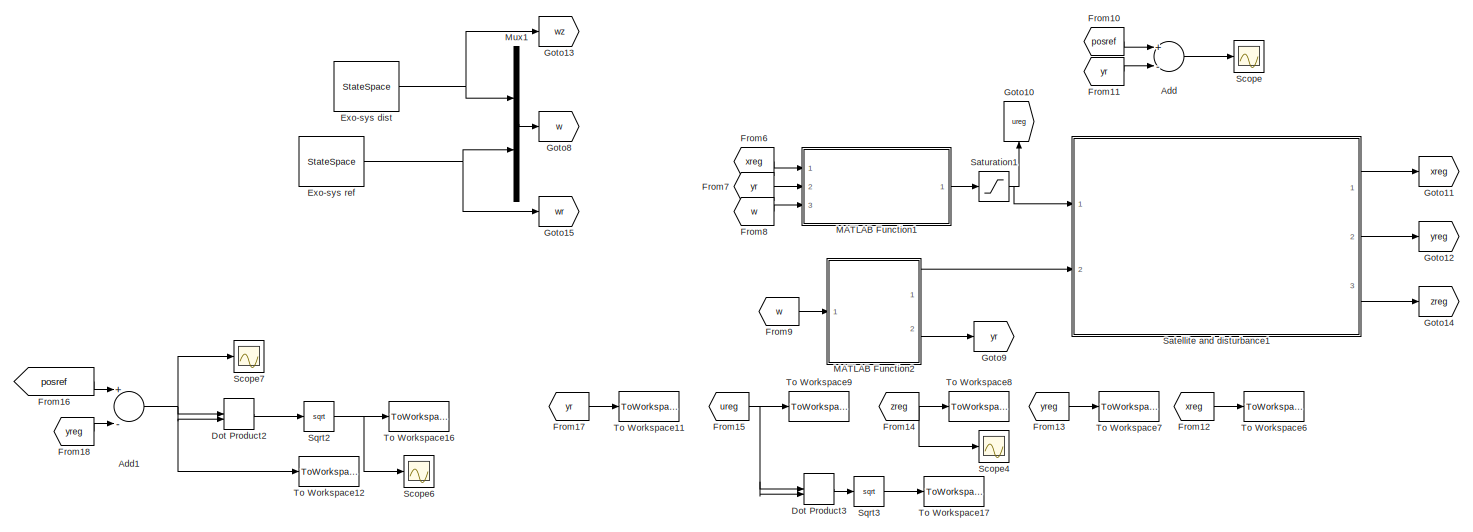
[diagram: root canvas - part 1/2, full width, top band]
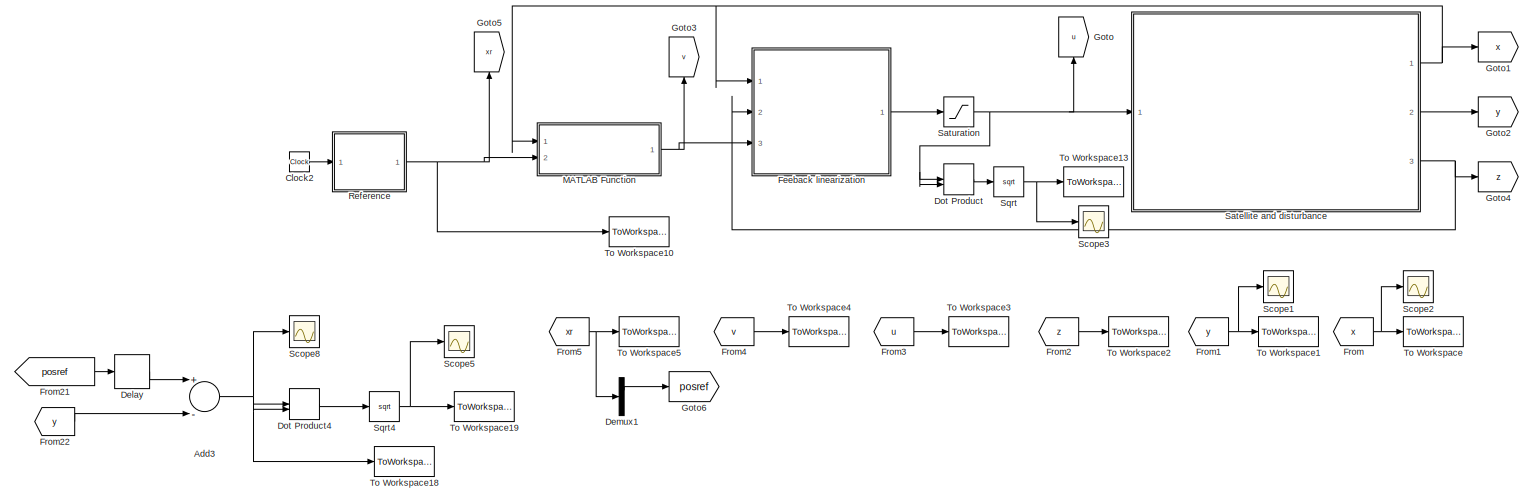
[diagram: root canvas - part 2/2, full width, bottom band]
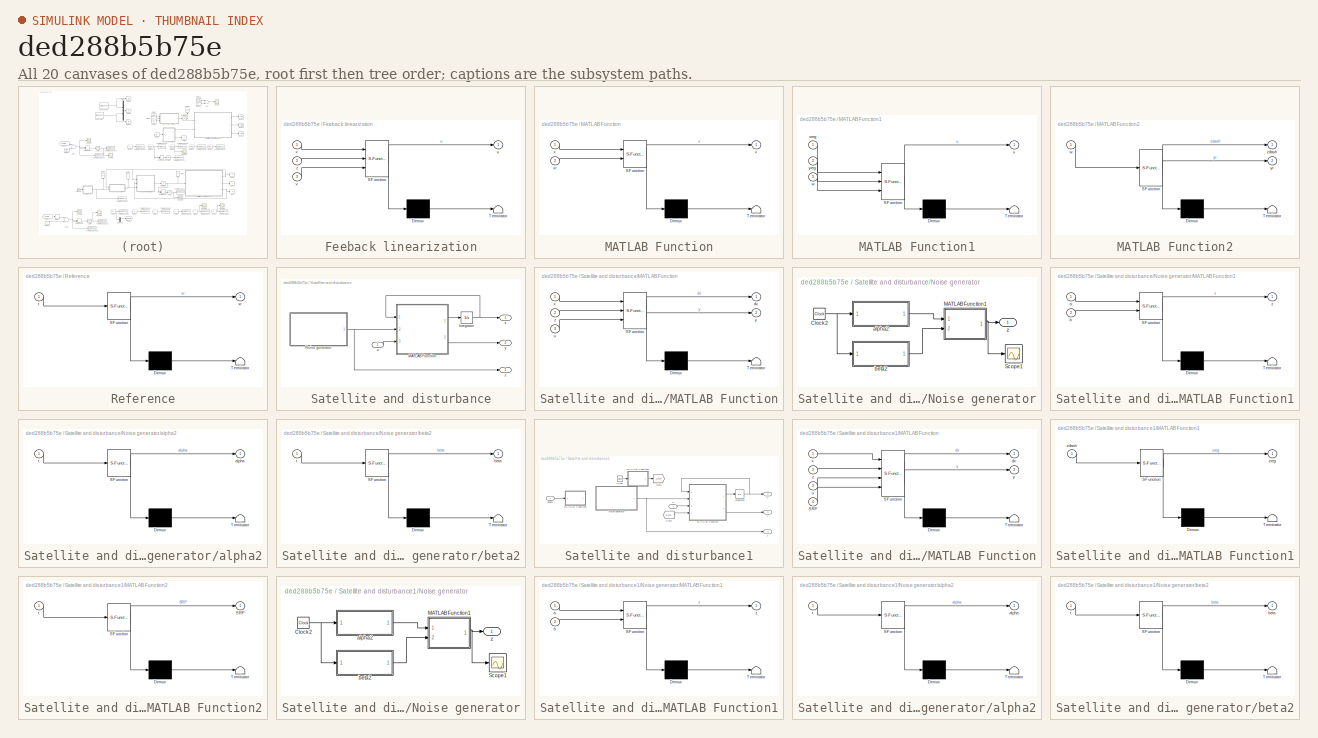
[diagram: thumbnail index - all 20 canvases of the model, root first then tree order]
MODEL slx_ded288b5b75e
KIND model
CONFIG AbsTol = auto
CONFIG EnableMultiTasking = off
CONFIG FixedStep = 10^-5
CONFIG MaxStep = auto
CONFIG MinStep = auto
CONFIG RelTol = 1e-4
CONFIG SampleTimeConstraint = Unconstrained
CONFIG Solver = ode45
CONFIG SolverName = ode45
CONFIG StartTime = 0.0
CONFIG StopTime = simTime
BLOCK [Sum] Add
  InputSameDT = off
  Inputs = +-
  OutDataTypeStr = Inherit: Inherit via internal rule
  Ports = [2, 1]
  SaturateOnIntegerOverflow = off
BLOCK [Sum] Add1
  InputSameDT = off
  Inputs = +-
  OutDataTypeStr = Inherit: Inherit via internal rule
  Ports = [2, 1]
  SaturateOnIntegerOverflow = off
BLOCK [Sum] Add3
  InputSameDT = off
  Inputs = +-
  OutDataTypeStr = Inherit: Inherit via internal rule
  Ports = [2, 1]
  SaturateOnIntegerOverflow = off
BLOCK [Clock] Clock2
BLOCK [Delay] Delay
  DelayLength = 1
  InputPortMap = u0
  Ports = [1, 1]
  SampleTime = delta
BLOCK [Demux] Demux1
  DisplayOption = bar
  Outputs = [3 3]
  Ports = [1, 2]
BLOCK [DotProduct] Dot Product
  OutDataTypeStr = Inherit: Inherit via internal rule
BLOCK [DotProduct] Dot Product2
  OutDataTypeStr = Inherit: Inherit via internal rule
BLOCK [DotProduct] Dot Product3
  OutDataTypeStr = Inherit: Inherit via internal rule
BLOCK [DotProduct] Dot Product4
  OutDataTypeStr = Inherit: Inherit via internal rule
BLOCK [StateSpace] Exo-sys dist
  A = [0 -1;1 0]
  B = [0;0]
  C = eye(2)
  D = zeros(2,1)
  InitialCondition = [1;0]
  Ports = [1, 1]
BLOCK [StateSpace] Exo-sys ref 
  A = [0 -Omega;Omega 0]
  B = [0;0]
  C = eye(2)
  D = zeros(2,1)
  InitialCondition = [1;0]
  Ports = [1, 1]
BLOCK [SubSystem] Feeback linearization
  ErrorFcn = Stateflow.Translate.translate
  PermitHierarchicalResolution = ExplicitOnly
  Ports = [3, 1]
  RequestExecContextInheritance = off
  SFBlockType = MATLAB Function
  SystemSampleTime = emulation
  TreatAsAtomicUnit = on
BLOCK [Demux] Feeback linearization/ Demux 
  Outputs = 1
  Ports = [1, 1]
BLOCK [S-Function] Feeback linearization/ SFunction 
  EnableBusSupport = on
  FunctionName = sf_sfun
  Parameters = mu
  PortCounts = [3 2]
  Ports = [3, 2]
  SFcnIsStateOwnerBlock = off
  SFunctionDeploymentMode = off
  Tag = Stateflow S-Function 1
BLOCK [Terminator] Feeback linearization/ Terminator 
BLOCK [Outport] Feeback linearization/u
  IconDisplay = Port number
BLOCK [Inport] Feeback linearization/v
  IconDisplay = Port number
  Port = 3
BLOCK [Inport] Feeback linearization/x
  IconDisplay = Port number
BLOCK [Inport] Feeback linearization/z
  IconDisplay = Port number
  Port = 2
BLOCK [From] From
  GotoTag = x
BLOCK [From] From1
  GotoTag = y
BLOCK [From] From10
  GotoTag = posref
BLOCK [From] From11
  GotoTag = yr
BLOCK [From] From12
  GotoTag = xreg
BLOCK [From] From13
  GotoTag = yreg
BLOCK [From] From14
  GotoTag = zreg
BLOCK [From] From15
  GotoTag = ureg
BLOCK [From] From16
  GotoTag = posref
BLOCK [From] From17
  GotoTag = yr
BLOCK [From] From18
  GotoTag = yreg
BLOCK [From] From2
  GotoTag = z
BLOCK [From] From21
  GotoTag = posref
BLOCK [From] From22
  GotoTag = y
BLOCK [From] From3
  GotoTag = u
BLOCK [From] From4
  GotoTag = v
BLOCK [From] From5
  GotoTag = xr
BLOCK [From] From6
  GotoTag = xreg
BLOCK [From] From7
  GotoTag = yr
BLOCK [From] From8
  GotoTag = w
BLOCK [From] From9
  GotoTag = w
BLOCK [Goto] Goto
  GotoTag = u
BLOCK [Goto] Goto1
  GotoTag = x
BLOCK [Goto] Goto10
  GotoTag = ureg
BLOCK [Goto] Goto11
  GotoTag = xreg
BLOCK [Goto] Goto12
  GotoTag = yreg
BLOCK [Goto] Goto13
  GotoTag = wz
BLOCK [Goto] Goto14
  GotoTag = zreg
BLOCK [Goto] Goto15
  GotoTag = wr
BLOCK [Goto] Goto2
  GotoTag = y
BLOCK [Goto] Goto3
  GotoTag = v
BLOCK [Goto] Goto4
  GotoTag = z
BLOCK [Goto] Goto5
  GotoTag = xr
BLOCK [Goto] Goto6
  GotoTag = posref
BLOCK [Goto] Goto8
  GotoTag = w
BLOCK [Goto] Goto9
  GotoTag = yr
BLOCK [SubSystem] MATLAB Function
  ErrorFcn = Stateflow.Translate.translate
  PermitHierarchicalResolution = ExplicitOnly
  Ports = [2, 1]
  RequestExecContextInheritance = off
  SFBlockType = MATLAB Function
  SystemSampleTime = emulation
  TreatAsAtomicUnit = on
BLOCK [Demux] MATLAB Function/ Demux 
  Outputs = 1
  Ports = [1, 1]
BLOCK [S-Function] MATLAB Function/ SFunction 
  EnableBusSupport = on
  FunctionName = sf_sfun
  Parameters = K
  PortCounts = [2 2]
  Ports = [2, 2]
  SFcnIsStateOwnerBlock = off
  SFunctionDeploymentMode = off
  Tag = Stateflow S-Function 3
BLOCK [Terminator] MATLAB Function/ Terminator 
BLOCK [Outport] MATLAB Function/v
  IconDisplay = Port number
BLOCK [Inport] MATLAB Function/x
  IconDisplay = Port number
BLOCK [Inport] MATLAB Function/xr
  IconDisplay = Port number
  Port = 2
BLOCK [SubSystem] MATLAB Function1
  ErrorFcn = Stateflow.Translate.translate
  PermitHierarchicalResolution = ExplicitOnly
  Ports = [3, 1]
  RequestExecContextInheritance = off
  SFBlockType = MATLAB Function
  SystemSampleTime = emulation
  TreatAsAtomicUnit = on
BLOCK [Demux] MATLAB Function1/ Demux 
  Outputs = 1
  Ports = [1, 1]
BLOCK [S-Function] MATLAB Function1/ SFunction 
  EnableBusSupport = on
  FunctionName = sf_sfun
  Parameters = K,L2,Omega,a,b,c,disturbance,e,k,mu
  PortCounts = [3 2]
  Ports = [3, 2]
  SFcnIsStateOwnerBlock = off
  SFunctionDeploymentMode = off
  Tag = Stateflow S-Function 4
BLOCK [Terminator] MATLAB Function1/ Terminator 
BLOCK [Outport] MATLAB Function1/u
  IconDisplay = Port number
BLOCK [Inport] MATLAB Function1/w
  IconDisplay = Port number
  Port = 3
BLOCK [Inport] MATLAB Function1/xreg
  IconDisplay = Port number
BLOCK [Inport] MATLAB Function1/yreg
  IconDisplay = Port number
  Port = 2
BLOCK [SubSystem] MATLAB Function2
  ErrorFcn = Stateflow.Translate.translate
  PermitHierarchicalResolution = ExplicitOnly
  Ports = [1, 2]
  RequestExecContextInheritance = off
  SFBlockType = MATLAB Function
  TreatAsAtomicUnit = on
BLOCK [Demux] MATLAB Function2/ Demux 
  Outputs = 1
  Ports = [1, 1]
BLOCK [S-Function] MATLAB Function2/ SFunction 
  EnableBusSupport = on
  FunctionName = sf_sfun
  Parameters = L2,Omega,a,b,c,e,k,mu
  PortCounts = [1 3]
  Ports = [1, 3]
  SFcnIsStateOwnerBlock = off
  SFunctionDeploymentMode = off
  Tag = Stateflow S-Function 10
BLOCK [Terminator] MATLAB Function2/ Terminator 
BLOCK [Inport] MATLAB Function2/w
  IconDisplay = Port number
BLOCK [Outport] MATLAB Function2/yr
  IconDisplay = Port number
  Port = 2
BLOCK [Outport] MATLAB Function2/zdash
  IconDisplay = Port number
BLOCK [Mux] Mux1
  DisplayOption = bar
  Inputs = 2
  Ports = [2, 1]
BLOCK [SubSystem] Reference
  ErrorFcn = Stateflow.Translate.translate
  PermitHierarchicalResolution = ExplicitOnly
  Ports = [1, 1]
  RequestExecContextInheritance = off
  SFBlockType = MATLAB Function
  TreatAsAtomicUnit = on
BLOCK [Demux] Reference/ Demux 
  Outputs = 1
  Ports = [1, 1]
BLOCK [S-Function] Reference/ SFunction 
  EnableBusSupport = on
  FunctionName = sf_sfun
  Parameters = L2,Omega,Omega_z,c,e,h,k,phi
  PortCounts = [1 2]
  Ports = [1, 2]
  SFcnIsStateOwnerBlock = off
  SFunctionDeploymentMode = off
  Tag = Stateflow S-Function 5
BLOCK [Terminator] Reference/ Terminator 
BLOCK [Inport] Reference/t
  IconDisplay = Port number
BLOCK [Outport] Reference/xr
  IconDisplay = Port number
BLOCK [SubSystem] Satellite and disturbance
  Ports = [1, 3]
  RequestExecContextInheritance = off
BLOCK [Integrator] Satellite and disturbance/Integrator
  InitialCondition = x0
  Ports = [1, 1]
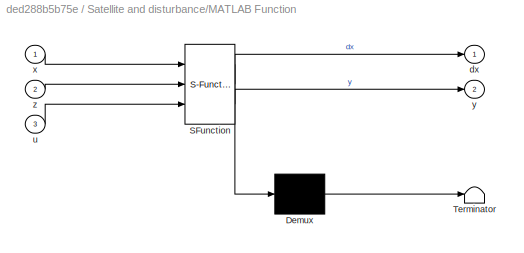
BLOCK [SubSystem] Satellite and disturbance/MATLAB Function
  ErrorFcn = Stateflow.Translate.translate
  PermitHierarchicalResolution = ExplicitOnly
  Ports = [3, 2]
  RequestExecContextInheritance = off
  SFBlockType = MATLAB Function
  TreatAsAtomicUnit = on
BLOCK [Demux] Satellite and disturbance/MATLAB Function/ Demux 
  Outputs = 1
  Ports = [1, 1]
BLOCK [S-Function] Satellite and disturbance/MATLAB Function/ SFunction 
  EnableBusSupport = on
  FunctionName = sf_sfun
  Parameters = mu
  PortCounts = [3 3]
  Ports = [3, 3]
  SFcnIsStateOwnerBlock = off
  SFunctionDeploymentMode = off
  Tag = Stateflow S-Function 2
BLOCK [Terminator] Satellite and disturbance/MATLAB Function/ Terminator 
BLOCK [Outport] Satellite and disturbance/MATLAB Function/dx
  IconDisplay = Port number
BLOCK [Inport] Satellite and disturbance/MATLAB Function/u
  IconDisplay = Port number
  Port = 3
BLOCK [Inport] Satellite and disturbance/MATLAB Function/x
  IconDisplay = Port number
BLOCK [Outport] Satellite and disturbance/MATLAB Function/y
  IconDisplay = Port number
  Port = 2
BLOCK [Inport] Satellite and disturbance/MATLAB Function/z
  IconDisplay = Port number
  Port = 2
BLOCK [SubSystem] Satellite and disturbance/Noise generator
  Ports = [0, 1]
  RequestExecContextInheritance = off
BLOCK [Clock] Satellite and disturbance/Noise generator/Clock2
BLOCK [SubSystem] Satellite and disturbance/Noise generator/MATLAB Function1
  ErrorFcn = Stateflow.Translate.translate
  PermitHierarchicalResolution = ExplicitOnly
  Ports = [2, 1]
  RequestExecContextInheritance = off
  SFBlockType = MATLAB Function
  TreatAsAtomicUnit = on
BLOCK [Demux] Satellite and disturbance/Noise generator/MATLAB Function1/ Demux 
  Outputs = 1
  Ports = [1, 1]
BLOCK [S-Function] Satellite and disturbance/Noise generator/MATLAB Function1/ SFunction 
  EnableBusSupport = on
  FunctionName = sf_sfun
  Parameters = disturbance,mu
  PortCounts = [2 2]
  Ports = [2, 2]
  SFcnIsStateOwnerBlock = off
  SFunctionDeploymentMode = off
  Tag = Stateflow S-Function 12
BLOCK [Terminator] Satellite and disturbance/Noise generator/MATLAB Function1/ Terminator 
BLOCK [Inport] Satellite and disturbance/Noise generator/MATLAB Function1/a
  IconDisplay = Port number
BLOCK [Inport] Satellite and disturbance/Noise generator/MATLAB Function1/b
  IconDisplay = Port number
  Port = 2
BLOCK [Outport] Satellite and disturbance/Noise generator/MATLAB Function1/z
  IconDisplay = Port number
BLOCK [Scope] Satellite and disturbance/Noise generator/Scope1
  Floating = off
  NumInputPorts = 1
  Ports = [1]
  ScopeSpecificationString = Simulink.scopes.TimeScopeBlockCfg('CurrentConfiguration', extmgr.ConfigurationSet(extmgr.Configuration('Core','General UI',true),extmgr.Configuration('Core','Source UI',true),extmgr.Configuration('Sources','WiredSimulink',true,'DataLoggingVariableName','ScopeData1'),extmgr.Configuration('Visuals','Time Domain',true,'SerializedDisplays',{struct('MinYLimReal','-2.5','MaxYLimReal','2.5','YLabelReal',...<+1470ch>
BLOCK [SubSystem] Satellite and disturbance/Noise generator/alpha2
  ErrorFcn = Stateflow.Translate.translate
  PermitHierarchicalResolution = ExplicitOnly
  Ports = [1, 1]
  RequestExecContextInheritance = off
  SFBlockType = MATLAB Function
  TreatAsAtomicUnit = on
BLOCK [Demux] Satellite and disturbance/Noise generator/alpha2/ Demux 
  Outputs = 1
  Ports = [1, 1]
BLOCK [S-Function] Satellite and disturbance/Noise generator/alpha2/ SFunction 
  EnableBusSupport = on
  FunctionName = sf_sfun
  Parameters = a,e,phi
  PortCounts = [1 2]
  Ports = [1, 2]
  SFcnIsStateOwnerBlock = off
  SFunctionDeploymentMode = off
  Tag = Stateflow S-Function 13
BLOCK [Terminator] Satellite and disturbance/Noise generator/alpha2/ Terminator 
BLOCK [Outport] Satellite and disturbance/Noise generator/alpha2/alpha
  IconDisplay = Port number
BLOCK [Inport] Satellite and disturbance/Noise generator/alpha2/t
  IconDisplay = Port number
BLOCK [SubSystem] Satellite and disturbance/Noise generator/beta2
  ErrorFcn = Stateflow.Translate.translate
  PermitHierarchicalResolution = ExplicitOnly
  Ports = [1, 1]
  RequestExecContextInheritance = off
  SFBlockType = MATLAB Function
  TreatAsAtomicUnit = on
BLOCK [Demux] Satellite and disturbance/Noise generator/beta2/ Demux 
  Outputs = 1
  Ports = [1, 1]
BLOCK [S-Function] Satellite and disturbance/Noise generator/beta2/ SFunction 
  EnableBusSupport = on
  FunctionName = sf_sfun
  Parameters = b,e,phi
  PortCounts = [1 2]
  Ports = [1, 2]
  SFcnIsStateOwnerBlock = off
  SFunctionDeploymentMode = off
  Tag = Stateflow S-Function 11
BLOCK [Terminator] Satellite and disturbance/Noise generator/beta2/ Terminator 
BLOCK [Outport] Satellite and disturbance/Noise generator/beta2/beta
  IconDisplay = Port number
BLOCK [Inport] Satellite and disturbance/Noise generator/beta2/t
  IconDisplay = Port number
BLOCK [Outport] Satellite and disturbance/Noise generator/z
  IconDisplay = Port number
BLOCK [Inport] Satellite and disturbance/u
  IconDisplay = Port number
BLOCK [Outport] Satellite and disturbance/x
  IconDisplay = Port number
BLOCK [Outport] Satellite and disturbance/y
  IconDisplay = Port number
  Port = 2
BLOCK [Outport] Satellite and disturbance/z
  IconDisplay = Port number
  Port = 3
BLOCK [SubSystem] Satellite and disturbance1
  Ports = [2, 3]
  RequestExecContextInheritance = off
BLOCK [Clock] Satellite and disturbance1/Clock
BLOCK [From] Satellite and disturbance1/From
  GotoTag = SRP
BLOCK [Goto] Satellite and disturbance1/Goto
  GotoTag = SRP
BLOCK [Integrator] Satellite and disturbance1/Integrator
  InitialCondition = x0
  Ports = [1, 1]
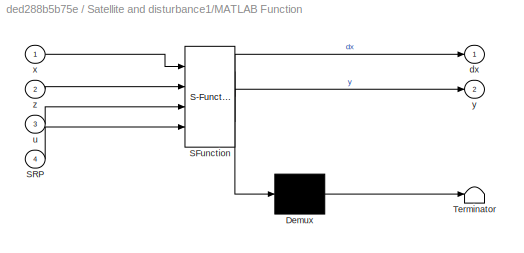
BLOCK [SubSystem] Satellite and disturbance1/MATLAB Function
  ErrorFcn = Stateflow.Translate.translate
  PermitHierarchicalResolution = ExplicitOnly
  Ports = [4, 2]
  RequestExecContextInheritance = off
  SFBlockType = MATLAB Function
  TreatAsAtomicUnit = on
BLOCK [Demux] Satellite and disturbance1/MATLAB Function/ Demux 
  Outputs = 1
  Ports = [1, 1]
BLOCK [S-Function] Satellite and disturbance1/MATLAB Function/ SFunction 
  EnableBusSupport = on
  FunctionName = sf_sfun
  Parameters = mu
  PortCounts = [4 3]
  Ports = [4, 3]
  SFcnIsStateOwnerBlock = off
  SFunctionDeploymentMode = off
  Tag = Stateflow S-Function 14
BLOCK [Terminator] Satellite and disturbance1/MATLAB Function/ Terminator 
BLOCK [Inport] Satellite and disturbance1/MATLAB Function/SRP
  IconDisplay = Port number
  Port = 4
BLOCK [Outport] Satellite and disturbance1/MATLAB Function/dx
  IconDisplay = Port number
BLOCK [Inport] Satellite and disturbance1/MATLAB Function/u
  IconDisplay = Port number
  Port = 3
BLOCK [Inport] Satellite and disturbance1/MATLAB Function/x
  IconDisplay = Port number
BLOCK [Outport] Satellite and disturbance1/MATLAB Function/y
  IconDisplay = Port number
  Port = 2
BLOCK [Inport] Satellite and disturbance1/MATLAB Function/z
  IconDisplay = Port number
  Port = 2
BLOCK [SubSystem] Satellite and disturbance1/MATLAB Function1
  ErrorFcn = Stateflow.Translate.translate
  PermitHierarchicalResolution = ExplicitOnly
  Ports = [1, 1]
  RequestExecContextInheritance = off
  SFBlockType = MATLAB Function
  TreatAsAtomicUnit = on
BLOCK [Demux] Satellite and disturbance1/MATLAB Function1/ Demux 
  Outputs = 1
  Ports = [1, 1]
BLOCK [S-Function] Satellite and disturbance1/MATLAB Function1/ SFunction 
  EnableBusSupport = on
  FunctionName = sf_sfun
  Parameters = disturbance
  PortCounts = [1 2]
  Ports = [1, 2]
  SFcnIsStateOwnerBlock = off
  SFunctionDeploymentMode = off
  Tag = Stateflow S-Function 6
BLOCK [Terminator] Satellite and disturbance1/MATLAB Function1/ Terminator 
BLOCK [Inport] Satellite and disturbance1/MATLAB Function1/zdash
  IconDisplay = Port number
BLOCK [Outport] Satellite and disturbance1/MATLAB Function1/zreg
  IconDisplay = Port number
BLOCK [SubSystem] Satellite and disturbance1/MATLAB Function2
  ErrorFcn = Stateflow.Translate.translate
  PermitHierarchicalResolution = ExplicitOnly
  Ports = [1, 1]
  RequestExecContextInheritance = off
  SFBlockType = MATLAB Function
  TreatAsAtomicUnit = on
BLOCK [Demux] Satellite and disturbance1/MATLAB Function2/ Demux 
  Outputs = 1
  Ports = [1, 1]
BLOCK [S-Function] Satellite and disturbance1/MATLAB Function2/ SFunction 
  EnableBusSupport = on
  FunctionName = sf_sfun
  Parameters = Gsc,sped,srp,zeta
  PortCounts = [1 2]
  Ports = [1, 2]
  SFcnIsStateOwnerBlock = off
  SFunctionDeploymentMode = off
  Tag = Stateflow S-Function 15
BLOCK [Terminator] Satellite and disturbance1/MATLAB Function2/ Terminator 
BLOCK [Outport] Satellite and disturbance1/MATLAB Function2/SRP
  IconDisplay = Port number
BLOCK [Inport] Satellite and disturbance1/MATLAB Function2/t
  IconDisplay = Port number
BLOCK [SubSystem] Satellite and disturbance1/Noise generator
  Ports = [0, 1]
  RequestExecContextInheritance = off
BLOCK [Clock] Satellite and disturbance1/Noise generator/Clock2
BLOCK [SubSystem] Satellite and disturbance1/Noise generator/MATLAB Function1
  ErrorFcn = Stateflow.Translate.translate
  PermitHierarchicalResolution = ExplicitOnly
  Ports = [2, 1]
  RequestExecContextInheritance = off
  SFBlockType = MATLAB Function
  TreatAsAtomicUnit = on
BLOCK [Demux] Satellite and disturbance1/Noise generator/MATLAB Function1/ Demux 
  Outputs = 1
  Ports = [1, 1]
BLOCK [S-Function] Satellite and disturbance1/Noise generator/MATLAB Function1/ SFunction 
  EnableBusSupport = on
  FunctionName = sf_sfun
  Parameters = disturbance,mu
  PortCounts = [2 2]
  Ports = [2, 2]
  SFcnIsStateOwnerBlock = off
  SFunctionDeploymentMode = off
  Tag = Stateflow S-Function 7
BLOCK [Terminator] Satellite and disturbance1/Noise generator/MATLAB Function1/ Terminator 
BLOCK [Inport] Satellite and disturbance1/Noise generator/MATLAB Function1/a
  IconDisplay = Port number
BLOCK [Inport] Satellite and disturbance1/Noise generator/MATLAB Function1/b
  IconDisplay = Port number
  Port = 2
BLOCK [Outport] Satellite and disturbance1/Noise generator/MATLAB Function1/z
  IconDisplay = Port number
BLOCK [Scope] Satellite and disturbance1/Noise generator/Scope1
  Floating = off
  NumInputPorts = 1
  Ports = [1]
  ScopeSpecificationString = Simulink.scopes.TimeScopeBlockCfg('CurrentConfiguration', extmgr.ConfigurationSet(extmgr.Configuration('Core','General UI',true),extmgr.Configuration('Core','Source UI',true),extmgr.Configuration('Sources','WiredSimulink',true,'DataLoggingVariableName','ScopeData1'),extmgr.Configuration('Visuals','Time Domain',true,'SerializedDisplays',{struct('MinYLimReal','-2.5','MaxYLimReal','2.5','YLabelReal',...<+1470ch>
BLOCK [SubSystem] Satellite and disturbance1/Noise generator/alpha2
  ErrorFcn = Stateflow.Translate.translate
  PermitHierarchicalResolution = ExplicitOnly
  Ports = [1, 1]
  RequestExecContextInheritance = off
  SFBlockType = MATLAB Function
  TreatAsAtomicUnit = on
BLOCK [Demux] Satellite and disturbance1/Noise generator/alpha2/ Demux 
  Outputs = 1
  Ports = [1, 1]
BLOCK [S-Function] Satellite and disturbance1/Noise generator/alpha2/ SFunction 
  EnableBusSupport = on
  FunctionName = sf_sfun
  Parameters = a,e,phi
  PortCounts = [1 2]
  Ports = [1, 2]
  SFcnIsStateOwnerBlock = off
  SFunctionDeploymentMode = off
  Tag = Stateflow S-Function 8
BLOCK [Terminator] Satellite and disturbance1/Noise generator/alpha2/ Terminator 
BLOCK [Outport] Satellite and disturbance1/Noise generator/alpha2/alpha
  IconDisplay = Port number
BLOCK [Inport] Satellite and disturbance1/Noise generator/alpha2/t
  IconDisplay = Port number
BLOCK [SubSystem] Satellite and disturbance1/Noise generator/beta2
  ErrorFcn = Stateflow.Translate.translate
  PermitHierarchicalResolution = ExplicitOnly
  Ports = [1, 1]
  RequestExecContextInheritance = off
  SFBlockType = MATLAB Function
  TreatAsAtomicUnit = on
BLOCK [Demux] Satellite and disturbance1/Noise generator/beta2/ Demux 
  Outputs = 1
  Ports = [1, 1]
BLOCK [S-Function] Satellite and disturbance1/Noise generator/beta2/ SFunction 
  EnableBusSupport = on
  FunctionName = sf_sfun
  Parameters = b,e,phi
  PortCounts = [1 2]
  Ports = [1, 2]
  SFcnIsStateOwnerBlock = off
  SFunctionDeploymentMode = off
  Tag = Stateflow S-Function 9
BLOCK [Terminator] Satellite and disturbance1/Noise generator/beta2/ Terminator 
BLOCK [Outport] Satellite and disturbance1/Noise generator/beta2/beta
  IconDisplay = Port number
BLOCK [Inport] Satellite and disturbance1/Noise generator/beta2/t
  IconDisplay = Port number
BLOCK [Outport] Satellite and disturbance1/Noise generator/z
  IconDisplay = Port number
BLOCK [Inport] Satellite and disturbance1/u
  IconDisplay = Port number
BLOCK [Outport] Satellite and disturbance1/x
  IconDisplay = Port number
BLOCK [Outport] Satellite and disturbance1/y
  IconDisplay = Port number
  Port = 2
BLOCK [Outport] Satellite and disturbance1/z
  IconDisplay = Port number
  Port = 3
BLOCK [Inport] Satellite and disturbance1/zdash 
  IconDisplay = Port number
  Port = 2
BLOCK [Saturate] Saturation
  InputPortMap = u0
  LowerLimit = -satValue
  Ports = [1, 1]
  UpperLimit = satValue
BLOCK [Saturate] Saturation1
  InputPortMap = u0
  LowerLimit = -satValue
  Ports = [1, 1]
  UpperLimit = satValue
BLOCK [Scope] Scope
  Floating = off
  NumInputPorts = 1
  Ports = [1]
  ScopeSpecificationString = Simulink.scopes.TimeScopeBlockCfg('CurrentConfiguration', extmgr.ConfigurationSet(extmgr.Configuration('Core','General UI',true),extmgr.Configuration('Core','Source UI',true),extmgr.Configuration('Sources','WiredSimulink',true),extmgr.Configuration('Visuals','Time Domain',true,'SerializedDisplays',{struct('MinYLimReal','-0.25','MaxYLimReal','0.25','YLabelReal','','MinYLimMag','0.00000','MaxYLimMag...<+1321ch>
BLOCK [Scope] Scope1
  Floating = off
  NumInputPorts = 1
  Ports = [1]
  ScopeSpecificationString = Simulink.scopes.TimeScopeBlockCfg('CurrentConfiguration', extmgr.ConfigurationSet(extmgr.Configuration('Core','General UI',true),extmgr.Configuration('Core','Source UI',true),extmgr.Configuration('Sources','WiredSimulink',true,'DataLoggingVariableName','ScopeData1'),extmgr.Configuration('Visuals','Time Domain',true,'SerializedDisplays',{struct('MinYLimReal','-0.87186','MaxYLimReal','3.37637','YLab...<+1380ch>
BLOCK [Scope] Scope2
  Floating = off
  NumInputPorts = 1
  Ports = [1]
  ScopeSpecificationString = Simulink.scopes.TimeScopeBlockCfg('CurrentConfiguration', extmgr.ConfigurationSet(extmgr.Configuration('Core','General UI',true),extmgr.Configuration('Core','Source UI',true),extmgr.Configuration('Sources','WiredSimulink',true,'DataLoggingVariableName','ScopeData2'),extmgr.Configuration('Visuals','Time Domain',true,'SerializedDisplays',{struct('MinYLimReal','-4.36847','MaxYLimReal','3.76488','YLab...<+1548ch>
BLOCK [Scope] Scope3
  Floating = off
  NumInputPorts = 1
  Ports = [1]
  ScopeSpecificationString = Simulink.scopes.TimeScopeBlockCfg('CurrentConfiguration', extmgr.ConfigurationSet(extmgr.Configuration('Core','General UI',true),extmgr.Configuration('Core','Source UI',true),extmgr.Configuration('Sources','WiredSimulink',true,'DataLoggingVariableName','ScopeData1'),extmgr.Configuration('Visuals','Time Domain',true,'SerializedDisplays',{struct('MinYLimReal','-1.70002','MaxYLimReal','15.30022','YLa...<+1421ch>
BLOCK [Scope] Scope4
  Floating = off
  NumInputPorts = 1
  Ports = [1]
  ScopeSpecificationString = Simulink.scopes.TimeScopeBlockCfg('CurrentConfiguration', extmgr.ConfigurationSet(extmgr.Configuration('Core','General UI',true),extmgr.Configuration('Core','Source UI',true),extmgr.Configuration('Sources','WiredSimulink',true,'DataLoggingVariableName','ScopeData1'),extmgr.Configuration('Visuals','Time Domain',true,'SerializedDisplays',{struct('MinYLimReal','-0.13725','MaxYLimReal','0.13725','YLab...<+1400ch>
BLOCK [Scope] Scope5
  Floating = off
  NumInputPorts = 1
  Ports = [1]
  ScopeSpecificationString = Simulink.scopes.TimeScopeBlockCfg('CurrentConfiguration', extmgr.ConfigurationSet(extmgr.Configuration('Core','General UI',true),extmgr.Configuration('Core','Source UI',true),extmgr.Configuration('Sources','WiredSimulink',true,'DataLoggingVariableName','ScopeData1'),extmgr.Configuration('Visuals','Time Domain',true,'SerializedDisplays',{struct('MinYLimReal','0.01576','MaxYLimReal','0.11572','YLabe...<+1394ch>
BLOCK [Scope] Scope6
  Floating = off
  NumInputPorts = 1
  Ports = [1]
  ScopeSpecificationString = Simulink.scopes.TimeScopeBlockCfg('CurrentConfiguration', extmgr.ConfigurationSet(extmgr.Configuration('Core','General UI',true),extmgr.Configuration('Core','Source UI',true),extmgr.Configuration('Sources','WiredSimulink',true,'DataLoggingVariableName','ScopeData2'),extmgr.Configuration('Visuals','Time Domain',true,'SerializedDisplays',{struct('MinYLimReal','-0.01216','MaxYLimReal','0.11882','YLab...<+1397ch>
BLOCK [Scope] Scope7
  Floating = off
  NumInputPorts = 1
  Ports = [1]
  ScopeSpecificationString = Simulink.scopes.TimeScopeBlockCfg('CurrentConfiguration', extmgr.ConfigurationSet(extmgr.Configuration('Core','General UI',true),extmgr.Configuration('Core','Source UI',true),extmgr.Configuration('Sources','WiredSimulink',true,'DataLoggingVariableName','ScopeData1'),extmgr.Configuration('Visuals','Time Domain',true,'SerializedDisplays',{struct('MinYLimReal','-0.01216','MaxYLimReal','0.11882','YLab...<+1397ch>
BLOCK [Scope] Scope8
  Floating = off
  NumInputPorts = 1
  Ports = [1]
  ScopeSpecificationString = Simulink.scopes.TimeScopeBlockCfg('CurrentConfiguration', extmgr.ConfigurationSet(extmgr.Configuration('Core','General UI',true),extmgr.Configuration('Core','Source UI',true),extmgr.Configuration('Sources','WiredSimulink',true,'DataLoggingVariableName','ScopeData2'),extmgr.Configuration('Visuals','Time Domain',true,'SerializedDisplays',{struct('MinYLimReal','-0.28029','MaxYLimReal','1.27766','YLab...<+1416ch>
BLOCK [Sqrt] Sqrt
BLOCK [Sqrt] Sqrt2
BLOCK [Sqrt] Sqrt3
BLOCK [Sqrt] Sqrt4
BLOCK [ToWorkspace] To Workspace
  FixptAsFi = on
  MaxDataPoints = inf
  Ports = [1]
  SampleTime = 10^-3
  VariableName = x
BLOCK [ToWorkspace] To Workspace1
  FixptAsFi = on
  MaxDataPoints = inf
  Ports = [1]
  SampleTime = 10^-3
  VariableName = y
BLOCK [ToWorkspace] To Workspace10
  FixptAsFi = on
  MaxDataPoints = inf
  Ports = [1]
  SampleTime = 10^-3
  VariableName = n_ref
BLOCK [ToWorkspace] To Workspace11
  FixptAsFi = on
  MaxDataPoints = inf
  Ports = [1]
  SampleTime = 10^-3
  VariableName = refreg
BLOCK [ToWorkspace] To Workspace12
  FixptAsFi = on
  MaxDataPoints = inf
  Ports = [1]
  SampleTime = 10^-3
  VariableName = error_reg
BLOCK [ToWorkspace] To Workspace13
  FixptAsFi = on
  MaxDataPoints = inf
  Ports = [1]
  SampleTime = 10^-3
  VariableName = DeltaV
BLOCK [ToWorkspace] To Workspace16
  FixptAsFi = on
  MaxDataPoints = inf
  Ports = [1]
  SampleTime = 10^-3
  Save2DSignal = 2-D array (concatenate along first dimension)
  VariableName = e_rms_reg
BLOCK [ToWorkspace] To Workspace17
  FixptAsFi = on
  MaxDataPoints = inf
  Ports = [1]
  SampleTime = 10^-3
  VariableName = DeltaV_reg
BLOCK [ToWorkspace] To Workspace18
  FixptAsFi = on
  MaxDataPoints = inf
  Ports = [1]
  SampleTime = 10^-3
  VariableName = error_fl
BLOCK [ToWorkspace] To Workspace19
  FixptAsFi = on
  MaxDataPoints = inf
  Ports = [1]
  SampleTime = 10^-3
  Save2DSignal = 2-D array (concatenate along first dimension)
  VariableName = e_rms_fl
BLOCK [ToWorkspace] To Workspace2
  FixptAsFi = on
  MaxDataPoints = inf
  Ports = [1]
  SampleTime = 10^-3
  VariableName = z
BLOCK [ToWorkspace] To Workspace3
  FixptAsFi = on
  MaxDataPoints = inf
  Ports = [1]
  SampleTime = 10^-3
  VariableName = u
BLOCK [ToWorkspace] To Workspace4
  FixptAsFi = on
  MaxDataPoints = inf
  Ports = [1]
  SampleTime = 10^-3
  VariableName = v
BLOCK [ToWorkspace] To Workspace5
  FixptAsFi = on
  MaxDataPoints = inf
  Ports = [1]
  SampleTime = 10^-3
  VariableName = xr
BLOCK [ToWorkspace] To Workspace6
  FixptAsFi = on
  MaxDataPoints = inf
  Ports = [1]
  SampleTime = 10^-3
  VariableName = xreg
BLOCK [ToWorkspace] To Workspace7
  FixptAsFi = on
  MaxDataPoints = inf
  Ports = [1]
  SampleTime = 10^-3
  VariableName = yreg
BLOCK [ToWorkspace] To Workspace8
  FixptAsFi = on
  MaxDataPoints = inf
  Ports = [1]
  SampleTime = 10^-3
  VariableName = zreg
BLOCK [ToWorkspace] To Workspace9
  FixptAsFi = on
  MaxDataPoints = inf
  Ports = [1]
  SampleTime = 10^-3
  VariableName = ureg
NET Add1:1 -> Dot Product2:1, Dot Product2:2, Scope7:1, To Workspace12:1
NET Add3:1 -> Dot Product4:1, Dot Product4:2, Scope8:1, To Workspace18:1
LINE Add:1 -> Scope:1
LINE Clock2:1 -> Reference:1
LINE Delay:1 -> Add3:1
LINE Demux1:1 -> Goto6:1
LINE Dot Product2:1 -> Sqrt2:1
LINE Dot Product3:1 -> Sqrt3:1
LINE Dot Product4:1 -> Sqrt4:1
LINE Dot Product:1 -> Sqrt:1
NET Exo-sys dist:1 -> Goto13:1, Mux1:1
NET Exo-sys ref :1 -> Goto15:1, Mux1:2
LINE Feeback linearization:1 -> Saturation:1
LINE From10:1 -> Add:1
LINE From11:1 -> Add:2
LINE From12:1 -> To Workspace6:1
LINE From13:1 -> To Workspace7:1
NET From14:1 -> Scope4:1, To Workspace8:1
NET From15:1 -> Dot Product3:1, Dot Product3:2, To Workspace9:1
LINE From16:1 -> Add1:1
LINE From17:1 -> To Workspace11:1
LINE From18:1 -> Add1:2
NET From1:1 -> Scope1:1, To Workspace1:1
LINE From21:1 -> Delay:1
LINE From22:1 -> Add3:2
LINE From2:1 -> To Workspace2:1
LINE From3:1 -> To Workspace3:1
LINE From4:1 -> To Workspace4:1
NET From5:1 -> Demux1:1, To Workspace5:1
LINE From6:1 -> MATLAB Function1:1
LINE From7:1 -> MATLAB Function1:2
LINE From8:1 -> MATLAB Function1:3
LINE From9:1 -> MATLAB Function2:1
NET From:1 -> Scope2:1, To Workspace:1
LINE MATLAB Function1:1 -> Saturation1:1
LINE MATLAB Function2:1 -> Satellite and disturbance1:2
LINE MATLAB Function2:2 -> Goto9:1
NET MATLAB Function:1 -> Feeback linearization:3, Goto3:1
LINE Mux1:1 -> Goto8:1
NET Reference:1 -> Goto5:1, MATLAB Function:2, To Workspace10:1
NET Satellite and disturbance/Integrator:1 -> Satellite and disturbance/MATLAB Function:1, Satellite and disturbance/x:1
LINE Satellite and disturbance/MATLAB Function:1 -> Satellite and disturbance/Integrator:1
LINE Satellite and disturbance/MATLAB Function:2 -> Satellite and disturbance/y:1
NET Satellite and disturbance/Noise generator/Clock2:1 -> Satellite and disturbance/Noise generator/alpha2:1, Satellite and disturbance/Noise generator/beta2:1
NET Satellite and disturbance/Noise generator/MATLAB Function1:1 -> Satellite and disturbance/Noise generator/Scope1:1, Satellite and disturbance/Noise generator/z:1
LINE Satellite and disturbance/Noise generator/alpha2:1 -> Satellite and disturbance/Noise generator/MATLAB Function1:1
LINE Satellite and disturbance/Noise generator/beta2:1 -> Satellite and disturbance/Noise generator/MATLAB Function1:2
NET Satellite and disturbance/Noise generator:1 -> Satellite and disturbance/MATLAB Function:2, Satellite and disturbance/z:1
LINE Satellite and disturbance/u:1 -> Satellite and disturbance/MATLAB Function:3
LINE Satellite and disturbance1/Clock:1 -> Satellite and disturbance1/MATLAB Function2:1
LINE Satellite and disturbance1/From:1 -> Satellite and disturbance1/MATLAB Function:4
NET Satellite and disturbance1/Integrator:1 -> Satellite and disturbance1/MATLAB Function:1, Satellite and disturbance1/x:1
LINE Satellite and disturbance1/MATLAB Function2:1 -> Satellite and disturbance1/Goto:1
LINE Satellite and disturbance1/MATLAB Function:1 -> Satellite and disturbance1/Integrator:1
LINE Satellite and disturbance1/MATLAB Function:2 -> Satellite and disturbance1/y:1
NET Satellite and disturbance1/Noise generator/Clock2:1 -> Satellite and disturbance1/Noise generator/alpha2:1, Satellite and disturbance1/Noise generator/beta2:1
NET Satellite and disturbance1/Noise generator/MATLAB Function1:1 -> Satellite and disturbance1/Noise generator/Scope1:1, Satellite and disturbance1/Noise generator/z:1
LINE Satellite and disturbance1/Noise generator/alpha2:1 -> Satellite and disturbance1/Noise generator/MATLAB Function1:1
LINE Satellite and disturbance1/Noise generator/beta2:1 -> Satellite and disturbance1/Noise generator/MATLAB Function1:2
NET Satellite and disturbance1/Noise generator:1 -> Satellite and disturbance1/MATLAB Function:2, Satellite and disturbance1/z:1
LINE Satellite and disturbance1/u:1 -> Satellite and disturbance1/MATLAB Function:3
LINE Satellite and disturbance1/zdash :1 -> Satellite and disturbance1/MATLAB Function1:1
LINE Satellite and disturbance1:1 -> Goto11:1
LINE Satellite and disturbance1:2 -> Goto12:1
LINE Satellite and disturbance1:3 -> Goto14:1
NET Satellite and disturbance:1 -> Feeback linearization:1, Goto1:1, MATLAB Function:1
LINE Satellite and disturbance:2 -> Goto2:1
NET Satellite and disturbance:3 -> Feeback linearization:2, Goto4:1
NET Saturation1:1 -> Goto10:1, Satellite and disturbance1:1
NET Saturation:1 -> Dot Product:1, Dot Product:2, Goto:1, Satellite and disturbance:1
NET Sqrt2:1 -> Scope6:1, To Workspace16:1
LINE Sqrt3:1 -> To Workspace17:1
NET Sqrt4:1 -> Scope5:1, To Workspace19:1
NET Sqrt:1 -> Scope3:1, To Workspace13:1
note: NET lines group one-source signal fan-out (src -> all destinations, sorted); 1:1 wires keep LINE
CHART Feeback linearization states=1 transitions=1
  STATE_LABEL 'eML_blk_kernel()'
  STATE_LABEL 'SCRIPT:\nfunction u = compensator(x,z,v,mu)\n%#codegen\n\n\nx1 = x(1:3);\nx2 = x(4:6);\n\n% M = [-1 0 0;\n%     0 -1 0;\n%     0 0 0];\n% \n% N = [0 -1 0;\n%     1 0 0;\n%     0 0 0];\n% \n% d1r = [-mu - z(4)/(1-mu);0;0];\n% d2r = [1-mu + z(4)/mu;0;0];\n% \n% ed1 = x1 - d1r;\n% absed1 = sqrt(ed1(1)^2+ed1(2)^2+ed1(3)^2);\n% ed2 = x1 - d2r;\n% absed2 = sqrt(ed2(1)^2+ed2(2)^2+ed2(3)^2);\n% \n% f2 = -M*x1 - 2*N*x2 - (2*M*x1 ...<+1142ch>'
CHART Satellite and disturbance/MATLAB Function states=1 transitions=1
  STATE_LABEL 'eML_blk_kernel()'
  STATE_LABEL 'SCRIPT:\nfunction [dx, y] = Satellite(x,z, u, mu)\n\nx1 = x(1:3);\nx2 = x(4:6);\n\nM = [-1 0 0;\n    0 -1 0;\n    0 0 0];\n\nN = [0 -1 0;\n    1 0 0;\n    0 0 0];\n\nd1r = [-mu - z(4)/(1-mu);0;0];\nd2r = [1-mu + z(4)/mu;0;0];\n\ned1 = x1 - d1r;\nabsed1 = sqrt(ed1(1)^2+ed1(2)^2+ed1(3)^2);\ned2 = x1 - d2r;\nabsed2 = sqrt(ed2(1)^2+ed2(2)^2+ed2(3)^2);\n\nf1 = x2;\nf2 = -M*x1 - 2*N*x2 - (2*M*x1 + 2*N*x2)*z(1) ...\n           ...<+145ch>'
CHART MATLAB Function states=1 transitions=1
  STATE_LABEL 'eML_blk_kernel()'
  STATE_LABEL 'SCRIPT:\nfunction v = linear_control(x, xr, K)\n\nv = -K*(x-xr);\n\n% v = -K*x;'
CHART MATLAB Function1 states=1 transitions=1
  STATE_LABEL 'eML_blk_kernel()'
  STATE_LABEL 'SCRIPT:\nfunction u = NLregulator(xreg, yreg, w, Omega, b, mu, a, e, K,k, c, disturbance, L2)\nTz = [b(1)*e 0;0 0;0 -b(1)*e;mu*(1-mu)*a(1)*e 0];\nTr = [k*(1-c(1)+Omega^2)/(2*Omega) 0;0 -k;-k 0];\nS2 = [0 -Omega;Omega 0];\nSeq = [L2;0;0];\nif disturbance == 1\n    wz = w(1:2);\nelse\n    wz = zeros(2,1);\nend\nwr = w(3:4);\n\npi = [-Tr*wr + Seq;-Tr*S2*wr];\n\nx_1 = pi(1);\nx_2 = pi(2);\nx_3 = pi(3);\nxd_1 = pi(4);\nx...<+905ch>'
CHART Reference states=1 transitions=1
  STATE_LABEL 'eML_blk_kernel()'
  STATE_LABEL 'SCRIPT:\nfunction xr = refer(t,c,Omega,Omega_z,L2,k,h, phi,e)\n%#codegen\n%% modify reference in future to account for Lyapunov orbits\n\nSeq = [L2;0;0;0;0;0];\nho1 = [(-k*(1-c(1)+Omega^2)/(2*Omega))*cos(Omega*t);\n       k*sin(Omega*t);\n       k*cos(Omega_z*t)];\n   \ndiffho1 = [(k*(1-c(1)+Omega^2)/2)*sin(Omega*t);\n           Omega*k*cos(Omega*t);\n           -Omega_z*k*sin(Omega_z*t)];\n     \n\n       \n\nxr ...<+28ch>'
CHART Satellite and disturbance1/MATLAB Function1 states=1 transitions=1
  STATE_LABEL 'eML_blk_kernel()'
  STATE_LABEL 'SCRIPT:\nfunction zreg = fcn(zdash, disturbance)\n\nif disturbance == 1 \n    zreg = zdash;\nelse\n    zreg = zeros(4,1);\nend\n'
CHART Satellite and disturbance1/Noise generator/MATLAB Function1 states=1 transitions=1
  STATE_LABEL 'eML_blk_kernel()'
  STATE_LABEL 'SCRIPT:\nfunction z = z(a,b,mu,disturbance)\n%#codegen\nif disturbance == 1\n    z = [b;mu*(1-mu)*a];\nelse\n    z = zeros(4,1);\nend'
CHART Satellite and disturbance1/Noise generator/alpha2 states=1 transitions=1
  STATE_LABEL 'eML_blk_kernel()'
  STATE_LABEL 'SCRIPT:\nfunction alpha = a(t,a,phi,e)\n%#codegen\na1 = a(1)*e*cos(t+phi);\n\n% alpha = a1 + a(2)*e^2*(1+cos(2*(t+phi)));\nalpha = a1;\n'
CHART Satellite and disturbance1/Noise generator/beta2 states=1 transitions=1
  STATE_LABEL 'eML_blk_kernel()'
  STATE_LABEL 'SCRIPT:\nfunction beta = b(t,b,phi,e)\n%#codegen\nb1 = b(1)*e*cos(t+phi);\nbd = -b(1)*e*sin(t+phi);\n% \n% beta = [b1 + b(2)*e^2*(1+cos(2*(t+phi)));\n%          (1+cos(2*(t+phi)))*e^2*b(1)^2/2;\n%          bd - 2*b(2)*e^2*sin(2*(t+phi))];\n\nbeta = [b1;0;bd];\n'
CHART MATLAB Function2 states=1 transitions=1
  STATE_LABEL 'eML_blk_kernel()'
  STATE_LABEL 'SCRIPT:\nfunction [zdash,yr] = fcn(w, c, Omega, k, a, b, mu, e, L2)\n\nSeq = [L2;0;0];\n\nT1 = [b(1)*e 0;0 0;0 -b(1)*e;mu*(1-mu)*a(1)*e 0];\nQ1 = [k*(1-c(1)+Omega^2)/(2*Omega) 0;0 -k;-k 0];\n\nzdash = T1*w(1:2);\nyr = Q1*w(3:4) + Seq;\n\n'
CHART Satellite and disturbance/Noise generator/beta2 states=1 transitions=1
  STATE_LABEL 'eML_blk_kernel()'
  STATE_LABEL 'SCRIPT:\nfunction beta = b(t,b,phi,e)\n%#codegen\nb1 = b(1)*e*cos(t+phi);\nbd = -b(1)*e*sin(t+phi);\n% \n% beta = [b1 + b(2)*e^2*(1+cos(2*(t+phi)));\n%          (1+cos(2*(t+phi)))*e^2*b(1)^2/2;\n%          bd - 2*b(2)*e^2*sin(2*(t+phi))];\n\nbeta = [b1;0;bd];\n'
CHART Satellite and disturbance/Noise generator/MATLAB Function1 states=1 transitions=1
  STATE_LABEL 'eML_blk_kernel()'
  STATE_LABEL 'SCRIPT:\nfunction z = z(a,b,mu,disturbance)\n%#codegen\nif disturbance == 1\n    z = [b;mu*(1-mu)*a];\nelse\n    z = zeros(4,1);\nend'
CHART Satellite and disturbance/Noise generator/alpha2 states=1 transitions=1
  STATE_LABEL 'eML_blk_kernel()'
  STATE_LABEL 'SCRIPT:\nfunction alpha = a(t,a,phi,e)\n%#codegen\na1 = a(1)*e*cos(t+phi);\n\n% alpha = a1 + a(2)*e^2*(1+cos(2*(t+phi)));\nalpha = a1;\n'
CHART Satellite and disturbance1/MATLAB Function states=1 transitions=1
  STATE_LABEL 'eML_blk_kernel()'
  STATE_LABEL 'SCRIPT:\nfunction [dx, y] = Satellite(x,z, u, mu, SRP)\n\nx1 = x(1:3);\nx2 = x(4:6);\n\nM = [-1 0 0;\n    0 -1 0;\n    0 0 0];\n\nN = [0 -1 0;\n    1 0 0;\n    0 0 0];\n\nd1r = [-mu - z(4)/(1-mu);0;0];\nd2r = [1-mu + z(4)/mu;0;0];\n\ned1 = x1 - d1r;\nabsed1 = sqrt(ed1(1)^2+ed1(2)^2+ed1(3)^2);\ned2 = x1 - d2r;\nabsed2 = sqrt(ed2(1)^2+ed2(2)^2+ed2(3)^2);\n\nf1 = x2;\nf2 = -M*x1 - 2*N*x2 - (2*M*x1 + 2*N*x2)*z(1) ...\n      ...<+156ch>'
CHART Satellite and disturbance1/MATLAB Function2 states=1 transitions=1
  STATE_LABEL 'eML_blk_kernel()'
  STATE_LABEL 'SCRIPT:\nfunction SRP = fcn(srp, Gsc, sped, zeta,t)\n\nif srp == 1\n    SRP = [(Gsc/sped)*(cos(zeta*t))^2;(Gsc/sped)*(sin(zeta*t))^2;0];\nelse\n    SRP = [0;0;0];\nend\n'
